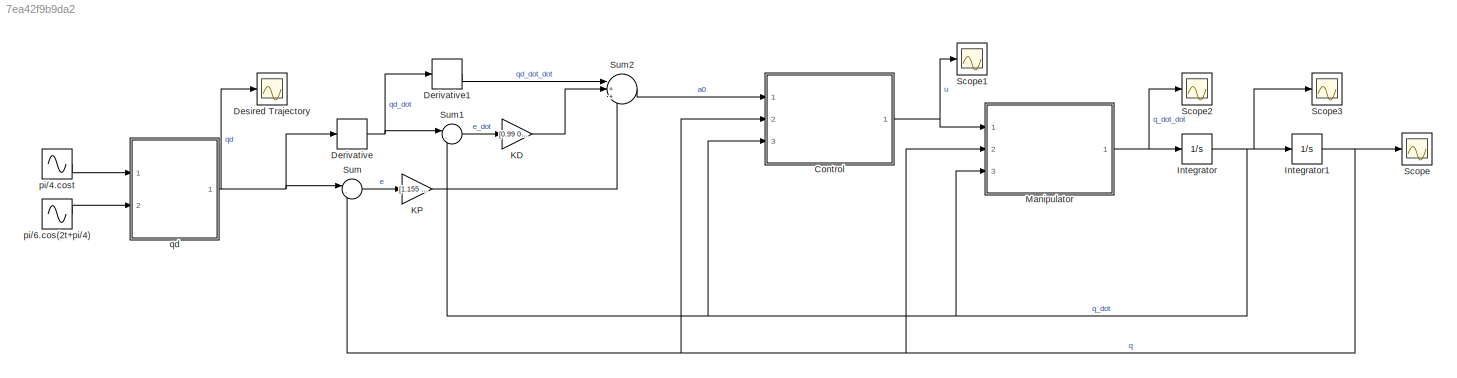
MODEL slx_7ea42f9b9da2
KIND model
CONFIG AbsTol = auto
CONFIG EnableMultiTasking = off
CONFIG FixedStep = auto
CONFIG MaxStep = auto
CONFIG MinStep = auto
CONFIG RelTol = 1e-3
CONFIG SampleTimeConstraint = Unconstrained
CONFIG Solver = VariableStepAuto
CONFIG SolverName = VariableStepAuto
CONFIG StartTime = 0.0
CONFIG StopTime = 20
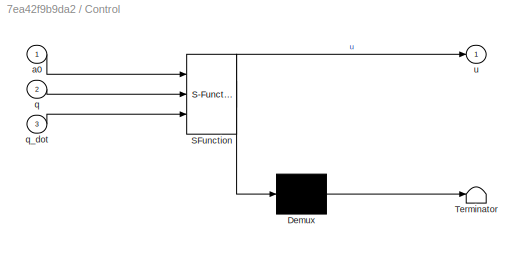
BLOCK [SubSystem] Control
  ErrorFcn = Stateflow.Translate.translate
  PermitHierarchicalResolution = ExplicitOnly
  Ports = [3, 1]
  RequestExecContextInheritance = off
  SFBlockType = MATLAB Function
  TreatAsAtomicUnit = on
BLOCK [Demux] Control/ Demux 
  Outputs = 1
  Ports = [1, 1]
BLOCK [S-Function] Control/ SFunction 
  EnableBusSupport = on
  FunctionName = sf_sfun
  PortCounts = [3 2]
  Ports = [3, 2]
  SFcnIsStateOwnerBlock = off
  SFunctionDeploymentMode = off
  Tag = Stateflow S-Function 1
BLOCK [Terminator] Control/ Terminator 
BLOCK [Inport] Control/a0
  IconDisplay = Port number
BLOCK [Inport] Control/q
  IconDisplay = Port number
  Port = 2
BLOCK [Inport] Control/q_dot
  IconDisplay = Port number
  Port = 3
BLOCK [Outport] Control/u
  IconDisplay = Port number
BLOCK [Derivative] Derivative
BLOCK [Derivative] Derivative1
BLOCK [Scope] Desired Trajectory
  Floating = off
  NumInputPorts = 1
  Ports = [1]
  ScopeSpecificationString = Simulink.scopes.TimeScopeBlockCfg('CurrentConfiguration', extmgr.ConfigurationSet(extmgr.Configuration('Core','General UI',true),extmgr.Configuration('Core','Source UI',true),extmgr.Configuration('Sources','WiredSimulink',true,'DataLoggingVariableName','ScopeData4'),extmgr.Configuration('Visuals','Time Domain',true,'SerializedDisplays',{struct('MinYLimReal','-0.98002','MaxYLimReal','0.98156','YLab...<+1425ch>
BLOCK [Integrator] Integrator
  InitialCondition = [0;0]
  Ports = [1, 1]
BLOCK [Integrator] Integrator1
  InitialCondition = [0;0]
  Ports = [1, 1]
BLOCK [Gain] KD
  Gain = [0.99 0;0 0.99]
  Multiplication = Matrix(K*u) (u vector)
  OutDataTypeStr = Inherit: Inherit via internal rule
  ParamDataTypeStr = Inherit: Inherit via internal rule
  SaturateOnIntegerOverflow = off
BLOCK [Gain] KP
  Gain = [1.155 0;0 1.155]
  Multiplication = Matrix(K*u) (u vector)
  OutDataTypeStr = Inherit: Inherit via internal rule
  ParamDataTypeStr = Inherit: Inherit via internal rule
  SaturateOnIntegerOverflow = off
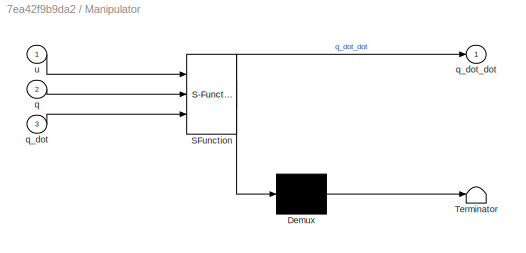
BLOCK [SubSystem] Manipulator
  ErrorFcn = Stateflow.Translate.translate
  PermitHierarchicalResolution = ExplicitOnly
  Ports = [3, 1]
  RequestExecContextInheritance = off
  SFBlockType = MATLAB Function
  TreatAsAtomicUnit = on
BLOCK [Demux] Manipulator/ Demux 
  Outputs = 1
  Ports = [1, 1]
BLOCK [S-Function] Manipulator/ SFunction 
  EnableBusSupport = on
  FunctionName = sf_sfun
  PortCounts = [3 2]
  Ports = [3, 2]
  SFcnIsStateOwnerBlock = off
  SFunctionDeploymentMode = off
  Tag = Stateflow S-Function 4
BLOCK [Terminator] Manipulator/ Terminator 
BLOCK [Inport] Manipulator/q
  IconDisplay = Port number
  Port = 2
BLOCK [Inport] Manipulator/q_dot
  IconDisplay = Port number
  Port = 3
BLOCK [Outport] Manipulator/q_dot_dot
  IconDisplay = Port number
BLOCK [Inport] Manipulator/u
  IconDisplay = Port number
BLOCK [Scope] Scope
  Floating = off
  NumInputPorts = 1
  Ports = [1]
  ScopeSpecificationString = Simulink.scopes.TimeScopeBlockCfg('CurrentConfiguration', extmgr.ConfigurationSet(extmgr.Configuration('Core','General UI',true),extmgr.Configuration('Core','Source UI',true),extmgr.Configuration('Sources','WiredSimulink',true),extmgr.Configuration('Visuals','Time Domain',true,'SerializedDisplays',{struct('MinYLimReal','-24918211610689.375','MaxYLimReal','2768690178965.48584','YLabelReal','','MinY...<+1501ch>
BLOCK [Scope] Scope1
  Floating = off
  NumInputPorts = 1
  Ports = [1]
  ScopeSpecificationString = Simulink.scopes.TimeScopeBlockCfg('CurrentConfiguration', extmgr.ConfigurationSet(extmgr.Configuration('Core','General UI',true),extmgr.Configuration('Core','Source UI',true),extmgr.Configuration('Sources','WiredSimulink',true,'DataLoggingVariableName','ScopeData1'),extmgr.Configuration('Visuals','Time Domain',true,'SerializedDisplays',{struct('MinYLimReal','-13451809503753673923060938130081401573...<+1743ch>
BLOCK [Scope] Scope2
  Floating = off
  NumInputPorts = 1
  Ports = [1]
  ScopeSpecificationString = Simulink.scopes.TimeScopeBlockCfg('CurrentConfiguration', extmgr.ConfigurationSet(extmgr.Configuration('Core','General UI',true),extmgr.Configuration('Core','Source UI',true),extmgr.Configuration('Sources','WiredSimulink',true,'DataLoggingVariableName','ScopeData2'),extmgr.Configuration('Visuals','Time Domain',true,'SerializedDisplays',{struct('MinYLimReal','-14718634556142041293771037276282725691...<+1750ch>
BLOCK [Scope] Scope3
  Floating = off
  NumInputPorts = 1
  Ports = [1]
  ScopeSpecificationString = Simulink.scopes.TimeScopeBlockCfg('CurrentConfiguration', extmgr.ConfigurationSet(extmgr.Configuration('Core','General UI',true),extmgr.Configuration('Core','Source UI',true),extmgr.Configuration('Sources','WiredSimulink',true,'DataLoggingVariableName','ScopeData3'),extmgr.Configuration('Visuals','Time Domain',true,'SerializedDisplays',{struct('MinYLimReal','-323401864292785258496.00000','MaxYLimR...<+1532ch>
BLOCK [Sum] Sum
  IconShape = round
  InputSameDT = off
  Inputs = |-+
  OutDataTypeStr = Inherit: Inherit via internal rule
  Ports = [2, 1]
  SaturateOnIntegerOverflow = off
BLOCK [Sum] Sum1
  IconShape = round
  InputSameDT = off
  Inputs = |-+
  OutDataTypeStr = Inherit: Inherit via internal rule
  Ports = [2, 1]
  SaturateOnIntegerOverflow = off
BLOCK [Sum] Sum2
  IconShape = round
  InputSameDT = off
  Inputs = |+++
  OutDataTypeStr = Inherit: Inherit via internal rule
  Ports = [3, 1]
  SaturateOnIntegerOverflow = off
BLOCK [Sin] pi//4.cost
  Amplitude = pi/4
  Phase = pi/2
  Ports = [0, 1]
  SampleTime = 0
BLOCK [Sin] pi//6.cos(2t+pi//4)
  Amplitude = pi/6
  Frequency = 2
  Phase = pi/4
  Ports = [0, 1]
  SampleTime = 0
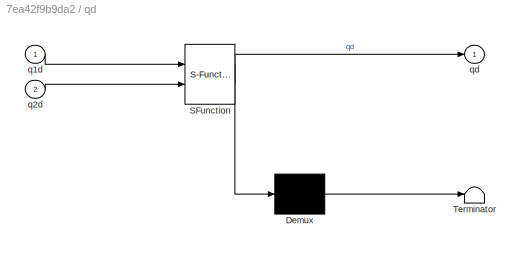
BLOCK [SubSystem] qd
  ErrorFcn = Stateflow.Translate.translate
  PermitHierarchicalResolution = ExplicitOnly
  Ports = [2, 1]
  RequestExecContextInheritance = off
  SFBlockType = MATLAB Function
  TreatAsAtomicUnit = on
BLOCK [Demux] qd/ Demux 
  Outputs = 1
  Ports = [1, 1]
BLOCK [S-Function] qd/ SFunction 
  EnableBusSupport = on
  FunctionName = sf_sfun
  PortCounts = [2 2]
  Ports = [2, 2]
  SFcnIsStateOwnerBlock = off
  SFunctionDeploymentMode = off
  Tag = Stateflow S-Function 8
BLOCK [Terminator] qd/ Terminator 
BLOCK [Inport] qd/q1d
  IconDisplay = Port number
BLOCK [Inport] qd/q2d
  IconDisplay = Port number
  Port = 2
BLOCK [Outport] qd/qd
  IconDisplay = Port number
NET Control:1 -> Manipulator:1, Scope1:1
LINE Derivative1:1 -> Sum2:1
NET Derivative:1 -> Derivative1:1, Sum1:1
NET Integrator1:1 -> Control:2, Manipulator:2, Scope:1, Sum:2
NET Integrator:1 -> Control:3, Integrator1:1, Manipulator:3, Scope3:1, Sum1:2
LINE KD:1 -> Sum2:2
LINE KP:1 -> Sum2:3
NET Manipulator:1 -> Integrator:1, Scope2:1
LINE Sum1:1 -> KD:1
LINE Sum2:1 -> Control:1
LINE Sum:1 -> KP:1
LINE pi//4.cost:1 -> qd:1
LINE pi//6.cos(2t+pi//4):1 -> qd:2
NET qd:1 -> Derivative:1, Desired Trajectory:1, Sum:1
note: NET lines group one-source signal fan-out (src -> all destinations, sorted); 1:1 wires keep LINE
CHART Control states=1 transitions=1
  STATE_LABEL 'eML_blk_kernel()'
  STATE_LABEL 'SCRIPT:\nfunction u  = Control(a0,q,q_dot)\nq1=q(1,1);\nq2=q(2,1);\nq1_dot=q_dot(1,1);\nq2_dot=q_dot(2,1);\nm1=0.025;\nm2=0.025;\nl1=1;\nlc1=0.5;\nlc2=0.5;\nq2=q(2,1);\nq1_dot=q_dot(1,1);\nq2_dot=q_dot(2,1);\nI1=0.0001;\nI2=0.0001;\ng=9.81;\n\nc11=-m2*l1*lc2*sin(q2)*q2_dot;\nc12=-m2*l1*lc2*sin(q2)*(q1_dot+q2_dot);\nc21=m2*l1*lc2*(sin(q2))*q1_dot;\nc22=0;\n\nC = [c11 c12; c21 c22];\n\ng1= (m1*lc1+m2*l1)*g*cos(q1) + m2*lc2*...<+261ch>'
CHART Manipulator states=1 transitions=1
  STATE_LABEL 'eML_blk_kernel()'
  STATE_LABEL 'SCRIPT:\nfunction q_dot_dot  = Manipulator(u,q,q_dot)\nq1=q(1,1);\nq2=q(2,1);\nq1_dot=q_dot(1,1);\nq2_dot=q_dot(2,1);\nm1=0.025;\nm2=0.025;\nl1=1;\nlc1=0.5;\nlc2=0.5;\nu1 = u(1,1);\nu2 = u(2,1);\nq2=q(2,1);\nq1_dot=q_dot(1,1);\nq2_dot=q_dot(2,1);\nI1=0.0001;\nI2=0.0001;\ng=9.81;\n\nc11=-m2*l1*lc2*sin(q2)*q2_dot;\nc12=-m2*l1*lc2*sin(q2)*(q1_dot+q2_dot);\nc21=m2*l1*lc2*(sin(q2))*q1_dot;\nc22=0;\n\nC = [c11 c12; c21 c22];\n\ng...<+381ch>'
CHART qd states=1 transitions=1
  STATE_LABEL 'eML_blk_kernel()'
  STATE_LABEL 'SCRIPT:\nfunction qd  = qd_calculator(q1d,q2d)\n\nqd=[q1d; q2d];\n\nend'
